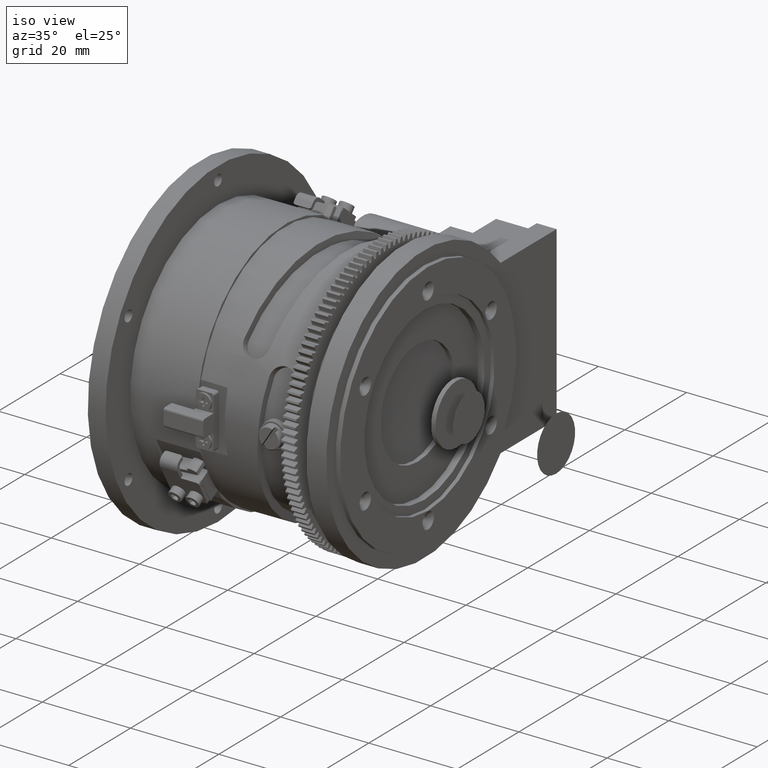
[diagram: clean part render]
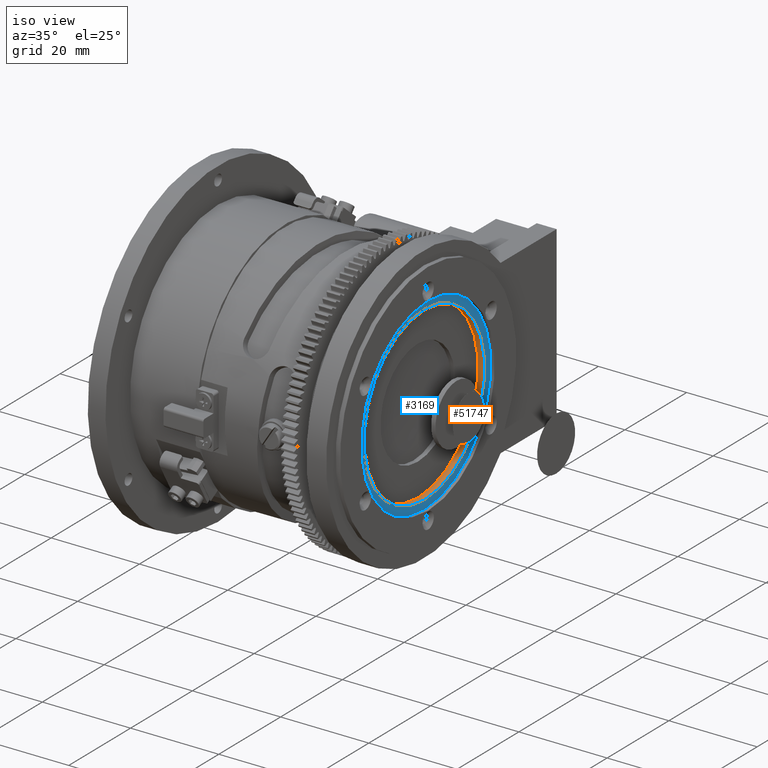
[diagram: same view with the hole feature highlighted: cylindrical wall and planar end face, labeled with their STEP entity ids]
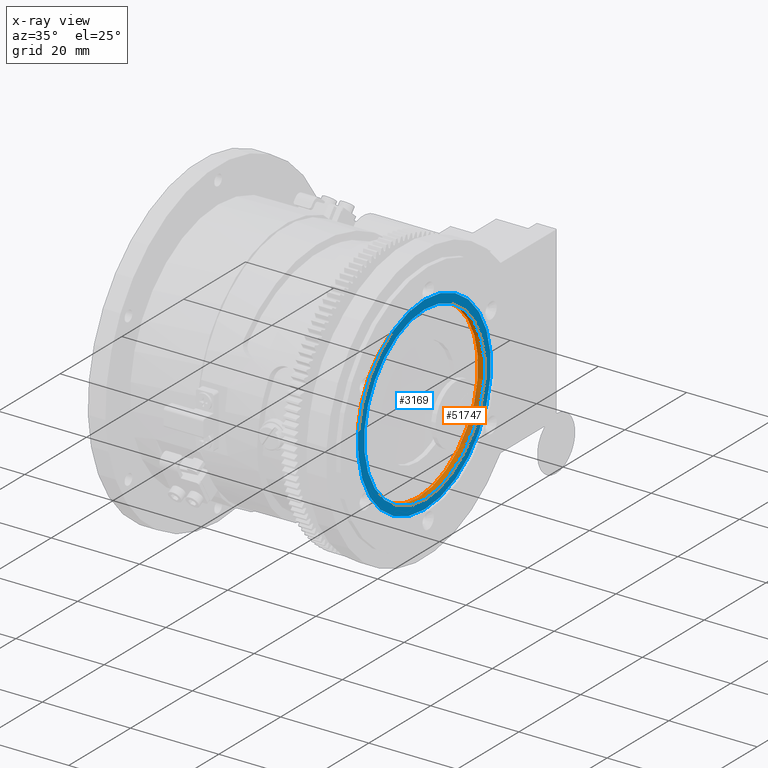
[diagram: x-ray of the same camera — body ghosted, the hole faces saturated]
A machine part, iso view. The highlighted faces form one hole feature of diameter 39 mm: the cylindrical wall (entity #51747, orange) and its adjacent planar end face (entity #3169, blue) — they share a circular edge in the B-rep.
The next image is the same camera in x-ray (body ghosted, the hole faces saturated) — the bore reads through the body.
Wall:
#3062 = FACE_OUTER_BOUND ( 'NONE', #39669, .T. ) ;
#5365 = AXIS2_PLACEMENT_3D ( 'NONE', #26022, #43421, #13311 ) ;
#12017 = CYLINDRICAL_SURFACE ( 'NONE', #24465, 19.49999999999999645 ) ;
#13311 = DIRECTION ( 'NONE',  ( 0.000000000000000000, 0.000000000000000000, -1.000000000000000000 ) ) ;
#16035 = EDGE_CURVE ( 'NONE', #34387, #34387, #42304, .T. ) ;
#18812 = CIRCLE ( 'NONE', #49273, 19.49999999999999645 ) ;
#20279 = ORIENTED_EDGE ( 'NONE', *, *, #36858, .F. ) ;
#20393 = ORIENTED_EDGE ( 'NONE', *, *, #16035, .F. ) ;
#20671 = FACE_OUTER_BOUND ( 'NONE', #25265, .T. ) ;
#24465 = AXIS2_PLACEMENT_3D ( 'NONE', #29621, #47316, #37469 ) ;
#25265 = EDGE_LOOP ( 'NONE', ( #20279 ) ) ;
#26022 = CARTESIAN_POINT ( 'NONE',  ( 49.09577499999994643, 0.000000000000000000, 0.000000000000000000 ) ) ;
#29050 = CARTESIAN_POINT ( 'NONE',  ( 50.59577499999994643, 0.000000000000000000, 0.000000000000000000 ) ) ;
#29621 = CARTESIAN_POINT ( 'NONE',  ( 0.000000000000000000, 0.000000000000000000, 0.000000000000000000 ) ) ;
#29672 = CARTESIAN_POINT ( 'NONE',  ( 50.59577499999994643, 0.000000000000000000, -19.49999999999999645 ) ) ;
#34387 = VERTEX_POINT ( 'NONE', #48851 ) ;
#36858 = EDGE_CURVE ( 'NONE', #37525, #37525, #18812, .T. ) ;
#37469 = DIRECTION ( 'NONE',  ( 0.000000000000000000, 0.000000000000000000, -1.000000000000000000 ) ) ;
#37525 = VERTEX_POINT ( 'NONE', #29672 ) ;
#38064 = DIRECTION ( 'NONE',  ( -1.000000000000000000, -0.000000000000000000, -0.000000000000000000 ) ) ;
#39669 = EDGE_LOOP ( 'NONE', ( #20393 ) ) ;
#42304 = CIRCLE ( 'NONE', #5365, 19.49999999999999645 ) ;
#43421 = DIRECTION ( 'NONE',  ( 1.000000000000000000, 0.000000000000000000, 0.000000000000000000 ) ) ;
#46738 = DIRECTION ( 'NONE',  ( 0.000000000000000000, 0.000000000000000000, -1.000000000000000000 ) ) ;
#47316 = DIRECTION ( 'NONE',  ( 1.000000000000000000, 0.000000000000000000, 0.000000000000000000 ) ) ;
#48851 = CARTESIAN_POINT ( 'NONE',  ( 49.09577499999994643, 0.000000000000000000, -19.49999999999999645 ) ) ;
#49273 = AXIS2_PLACEMENT_3D ( 'NONE', #29050, #38064, #46738 ) ;
#51747 = ADVANCED_FACE ( 'NONE', ( #3062, #20671 ), #12017, .F. ) ;
End face:
#3169 = ADVANCED_FACE ( 'NONE', ( #30653, #9535 ), #39940, .T. ) ;
#4325 = CIRCLE ( 'NONE', #44048, 21.50000000000000000 ) ;
#7157 = AXIS2_PLACEMENT_3D ( 'NONE', #31775, #8983, #18516 ) ;
#8983 = DIRECTION ( 'NONE',  ( 1.000000000000000000, -0.000000000000000000, 0.000000000000000000 ) ) ;
#9535 = FACE_OUTER_BOUND ( 'NONE', #37105, .T. ) ;
#10479 = DIRECTION ( 'NONE',  ( 0.000000000000000000, 0.000000000000000000, -1.000000000000000000 ) ) ;
#10910 = ORIENTED_EDGE ( 'NONE', *, *, #36858, .T. ) ;
#18516 = DIRECTION ( 'NONE',  ( 0.000000000000000000, 0.000000000000000000, -1.000000000000000000 ) ) ;
#18812 = CIRCLE ( 'NONE', #49273, 19.49999999999999645 ) ;
#19627 = ORIENTED_EDGE ( 'NONE', *, *, #53627, .T. ) ;
#29050 = CARTESIAN_POINT ( 'NONE',  ( 50.59577499999994643, 0.000000000000000000, 0.000000000000000000 ) ) ;
#29672 = CARTESIAN_POINT ( 'NONE',  ( 50.59577499999994643, 0.000000000000000000, -19.49999999999999645 ) ) ;
#30653 = FACE_BOUND ( 'NONE', #52217, .T. ) ;
#31775 = CARTESIAN_POINT ( 'NONE',  ( 50.59577499999994643, 19.49999999999999645, 0.000000000000000000 ) ) ;
#35177 = VERTEX_POINT ( 'NONE', #52548 ) ;
#36858 = EDGE_CURVE ( 'NONE', #37525, #37525, #18812, .T. ) ;
#37105 = EDGE_LOOP ( 'NONE', ( #19627 ) ) ;
#37525 = VERTEX_POINT ( 'NONE', #29672 ) ;
#38064 = DIRECTION ( 'NONE',  ( -1.000000000000000000, -0.000000000000000000, -0.000000000000000000 ) ) ;
#39940 = PLANE ( 'NONE',  #7157 ) ;
#40616 = DIRECTION ( 'NONE',  ( 1.000000000000000000, 0.000000000000000000, 0.000000000000000000 ) ) ;
#44048 = AXIS2_PLACEMENT_3D ( 'NONE', #54455, #40616, #10479 ) ;
#46738 = DIRECTION ( 'NONE',  ( 0.000000000000000000, 0.000000000000000000, -1.000000000000000000 ) ) ;
#49273 = AXIS2_PLACEMENT_3D ( 'NONE', #29050, #38064, #46738 ) ;
#52217 = EDGE_LOOP ( 'NONE', ( #10910 ) ) ;
#52548 = CARTESIAN_POINT ( 'NONE',  ( 50.59577499999994643, 0.000000000000000000, -21.50000000000000000 ) ) ;
#53627 = EDGE_CURVE ( 'NONE', #35177, #35177, #4325, .T. ) ;
#54455 = CARTESIAN_POINT ( 'NONE',  ( 50.59577499999994643, 0.000000000000000000, 0.000000000000000000 ) ) ;